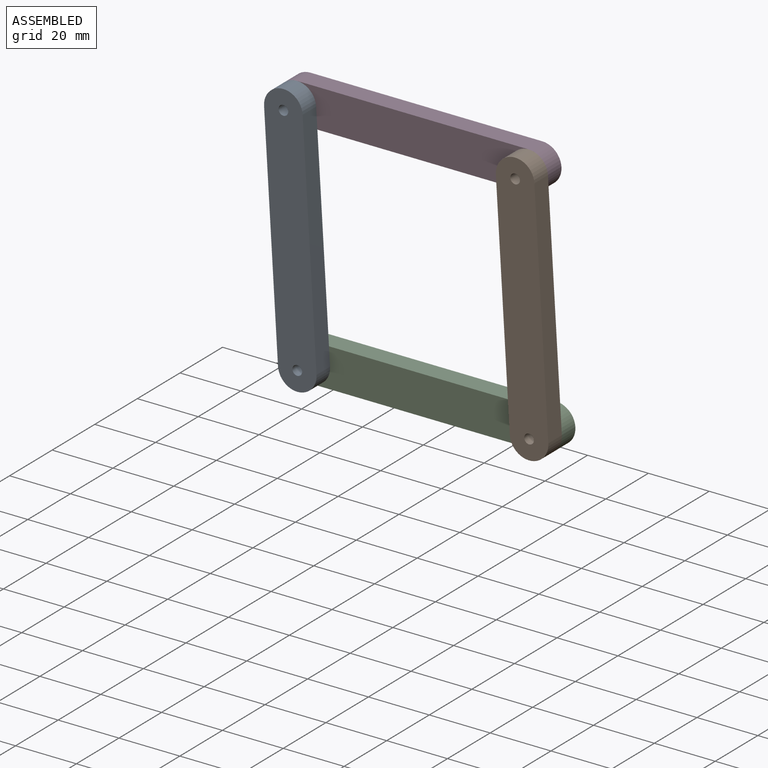
[diagram: assembled view]
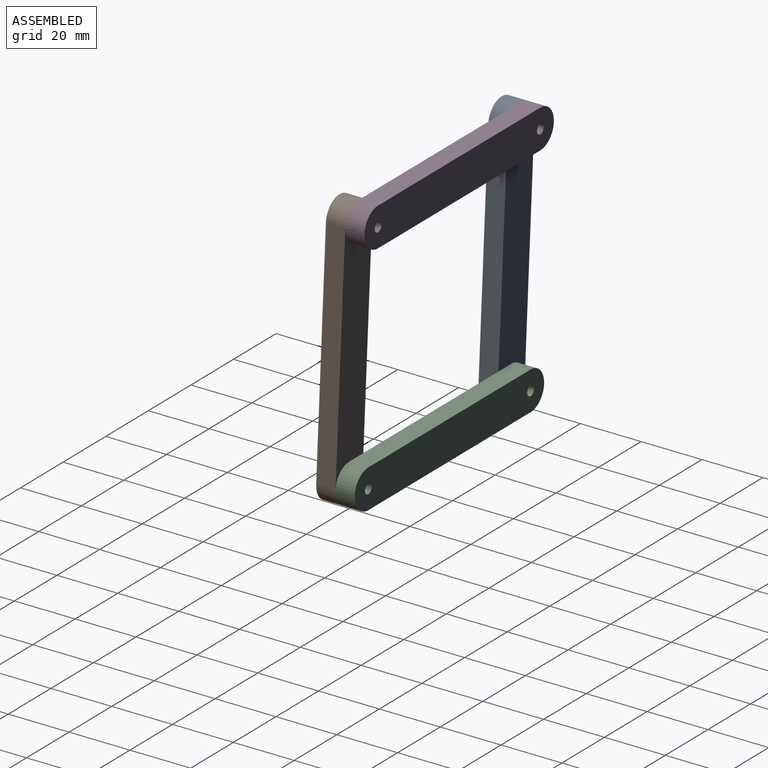
[diagram: assembled view, second angle]
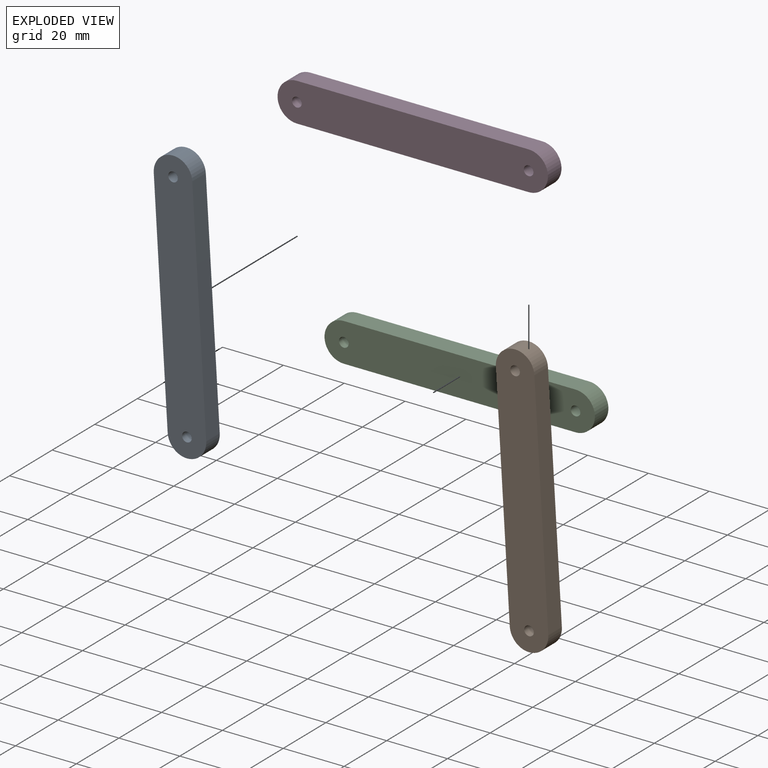
[diagram: exploded view]
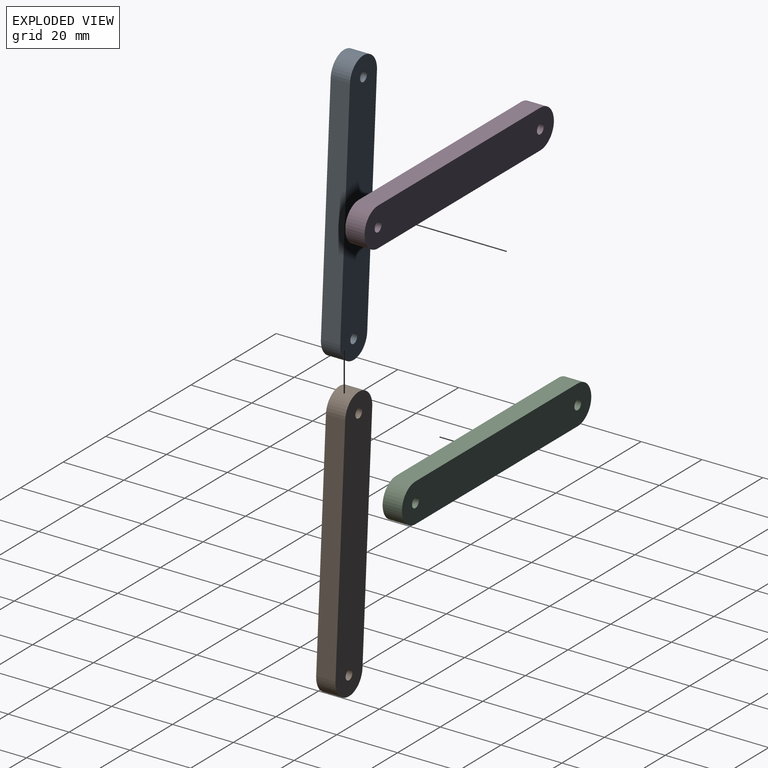
[diagram: exploded view, second angle]
ASSEMBLY  parts=4 mates=7
PART A: 8 faces, bbox 88.9x6.4x12.7 mm
  f0: plane 76.2x6.35mm, normal (0,0,1), area 483.9mm2, adj f1,f4,f6,f7
  f1: cylinder r=6.35mm len=12.7mm, axis (0,1,0), area 126.7mm2, adj f0,f2,f6,f7
  f2: plane 76.2x6.35mm, normal (0,0,-1), area 483.9mm2, adj f1,f4,f6,f7
  f3: cylinder r=1.59mm len=6.35mm, axis (0,1,0), area 63.3mm2, adj f6,f7
  f4: cylinder r=6.35mm len=12.7mm, axis (0,1,0), area 126.7mm2, adj f0,f2,f6,f7
  f5: cylinder r=1.59mm len=6.35mm, axis (0,1,0), area 63.3mm2, adj f6,f7
  f6: plane 88.9x12.7mm, normal (0,-1,0), area 1078.6mm2, adj f0,f1,f2,f3,f4,f5
  f7: plane 88.9x12.7mm, normal (0,1,0), area 1078.6mm2, adj f0,f1,f2,f3,f4,f5
PART B: same geometry as A
PART C: same geometry as A
PART D: same geometry as A
PLACE A rot(axis=(0,-1,0),93.4deg) t=(-14.7,51.07,-12.63)mm
PLACE B rot(axis=(0,1,0),86.6deg) t=(56.92,51.07,63.43)mm
PLACE C t=(-14.7,57.42,-12.63)mm fixed
PLACE D rot(axis=(0.16,0.69,0.71),0deg) t=(-19.28,57.42,63.43)mm
MATE planar D.f5 <-> B.f5  axis (0,-1,0) through (56.92,51.07,63.43)mm
MATE planar C.f6 <-> A.f7  axis (0,-1,0) through (23.4,51.07,-12.63)mm
MATE cylindrical D.f3 <-> A.f5  axis (0,-1,0) through (-19.28,51.07,63.43)mm
MATE cylindrical A.f3 <-> C.f3  axis (0,-1,0) through (-14.7,44.72,-12.63)mm
MATE cylindrical B.f5 <-> C.f5  axis (0,-1,0) through (61.5,44.72,-12.63)mm
MATE planar D.f6 <-> A.f7  axis (0,-1,0) through (18.82,51.07,63.43)mm
MATE cylindrical D.f5 <-> B.f3  axis (0,-1,0) through (56.92,51.07,63.43)mm
